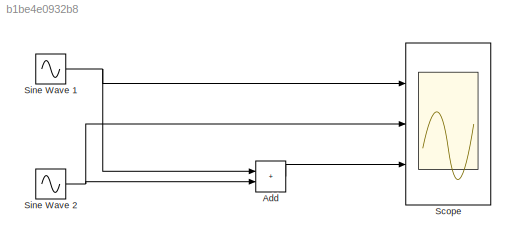
MODEL slx_b1be4e0932b8
KIND model
CONFIG AbsTol = auto
CONFIG EnableMultiTasking = off
CONFIG FixedStep = auto
CONFIG MaxStep = auto
CONFIG MinStep = auto
CONFIG RelTol = 1e-3
CONFIG SampleTimeConstraint = Unconstrained
CONFIG Solver = VariableStepAuto
CONFIG SolverName = VariableStepAuto
CONFIG StartTime = 0.0
CONFIG StopTime = 10.0
BLOCK [Sum] Add
  IconShape = rectangular
  Ports = [2, 1]
BLOCK [Scope] Scope
  Floating = off
  NameLocation = top
  NumInputPorts = 3
  Ports = [3]
  ScopeSpecificationString = Simulink.scopes.TimeScopeBlockCfg('CurrentConfiguration', extmgr.ConfigurationSet(extmgr.Configuration('Core','General UI',true),extmgr.Configuration('Core','Source UI',true),extmgr.Configuration('Sources','WiredSimulink',true),extmgr.Configuration('Visuals','Time Domain',true,'SerializedDisplays',{struct('MinYLimReal','-3.5805','MaxYLimReal','3.5805','YLabelReal','','MinYLimMag','0.00000','MaxYLi...<+1396ch>
BLOCK [Sin] Sine Wave 1
  Amplitude = 2
  Frequency = 4*pi
  Ports = [0, 1]
  SampleTime = 0
BLOCK [Sin] Sine Wave 2
  Ports = [0, 1]
  SampleTime = 0
LINE Add:1 -> Scope:3
NET Sine Wave 1:1 -> Add:1, Scope:1
NET Sine Wave 2:1 -> Add:2, Scope:2
note: NET lines group one-source signal fan-out (src -> all destinations, sorted); 1:1 wires keep LINE
